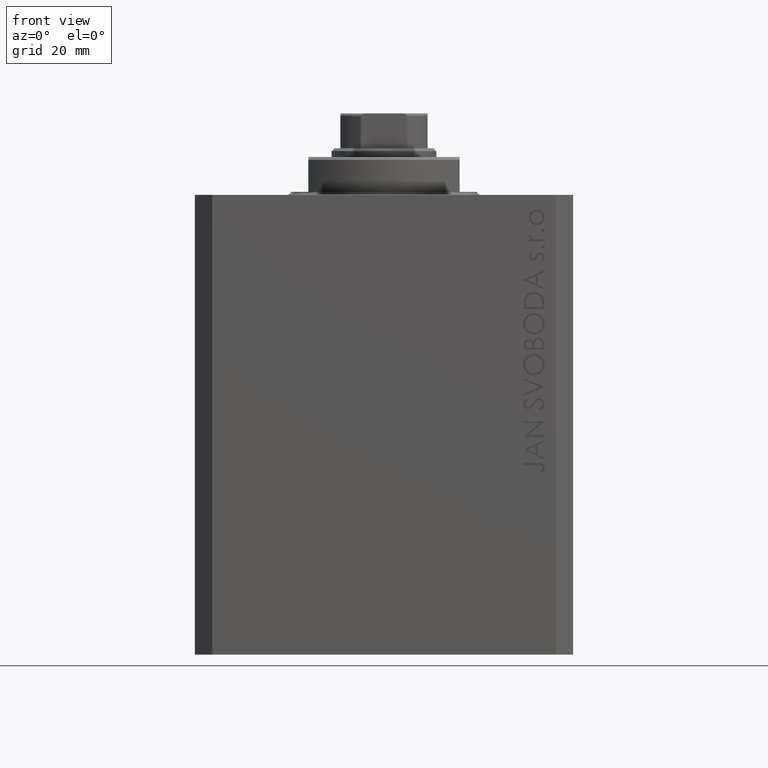
[diagram: clean part render]
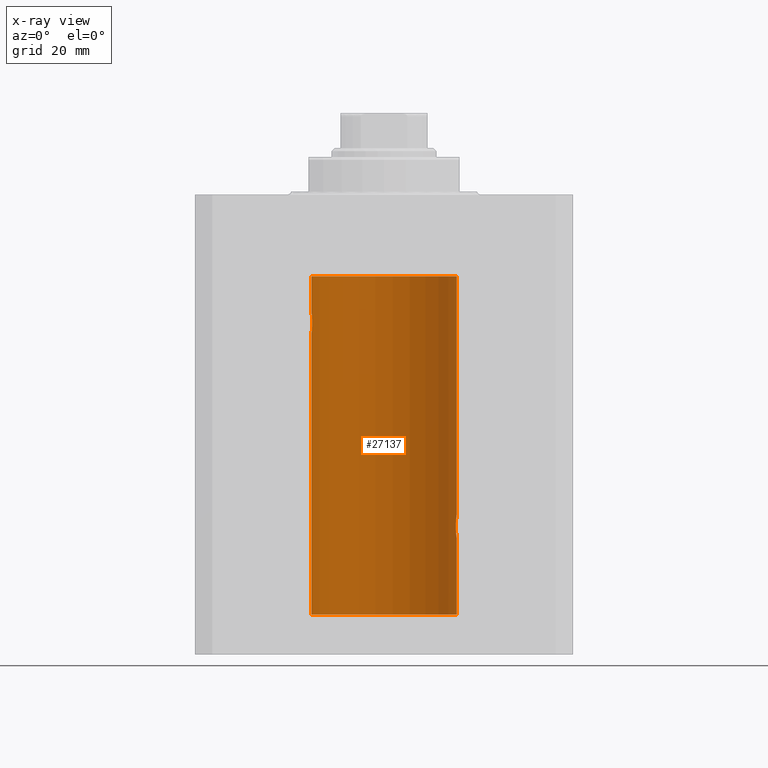
[diagram: x-ray — body ghosted, one internal face saturated and labeled with its STEP entity id]
A machine part, front view, then the same camera in x-ray: the body is ghosted and one INTERNAL B-rep face — a face not visible from any outside direction — is saturated and labeled: STEP entity #27137.
In plain terms, the highlighted cylindrical surface (partial cylindrical patch) has radius 12.5 mm, axis along (0, 0, 1).
Its self-contained STEP definition (entity closure, byte-faithful):
#103 = VECTOR ( 'NONE', #38731, 1000.000000000000000 ) ;
#238 = CARTESIAN_POINT ( 'NONE',  ( -12.46909283808506430, 0.8868029758979402155, -23.79742491916155345 ) ) ;
#696 = CARTESIAN_POINT ( 'NONE',  ( -12.44076681548080288, 1.220297236145718944, -23.58991408680628155 ) ) ;
#1567 = CARTESIAN_POINT ( 'NONE',  ( -12.50000000000000000, 1.867773856434666690E-17, -20.00000000000000000 ) ) ;
#1930 = CARTESIAN_POINT ( 'NONE',  ( 12.37021546997940113, 1.797317011867410219, -56.11295119741077997 ) ) ;
#1940 = ORIENTED_EDGE ( 'NONE', *, *, #11680, .T. ) ;
#2163 = CARTESIAN_POINT ( 'NONE',  ( 12.50000000000000178, 0.1324055009716459952, -59.00000000000000711 ) ) ;
#2618 = CYLINDRICAL_SURFACE ( 'NONE', #13047, 12.50000000000000000 ) ;
#2702 = ORIENTED_EDGE ( 'NONE', *, *, #4359, .T. ) ;
#3355 = CARTESIAN_POINT ( 'NONE',  ( -12.49788564268284041, 0.2633501011236127343, -23.98690384766255335 ) ) ;
#3588 = CARTESIAN_POINT ( 'NONE',  ( -12.44082361696003503, 1.219754986802281449, -20.40963319990594016 ) ) ;
#4358 = EDGE_CURVE ( 'NONE', #11318, #36697, #27882, .T. ) ;
#4359 = EDGE_CURVE ( 'NONE', #36697, #19746, #24497, .T. ) ;
#5171 = EDGE_CURVE ( 'NONE', #45705, #22380, #25640, .T. ) ;
#5354 = CIRCLE ( 'NONE', #10685, 12.50000000000000000 ) ;
#5474 = CARTESIAN_POINT ( 'NONE',  ( 12.50000000000000000, 0.000000000000000000, -13.99999999999999822 ) ) ;
#5496 = CARTESIAN_POINT ( 'NONE',  ( 12.37925647381943506, 1.734744884174225898, -55.99620732598649653 ) ) ;
#7063 = EDGE_CURVE ( 'NONE', #38696, #45705, #5354, .T. ) ;
#7136 = CIRCLE ( 'NONE', #33788, 12.50000000000000000 ) ;
#7162 = DIRECTION ( 'NONE',  ( 0.000000000000000000, 0.000000000000000000, 1.000000000000000000 ) ) ;
#7338 = CARTESIAN_POINT ( 'NONE',  ( -12.50000000000000000, 1.530808498934191521E-15, -72.09999999999999432 ) ) ;
#7549 = CARTESIAN_POINT ( 'NONE',  ( 12.50000000000000000, 0.000000000000000000, -72.09999999999999432 ) ) ;
#7626 = CARTESIAN_POINT ( 'NONE',  ( -12.37018026341338839, 1.797558627508998086, -22.88656313533016373 ) ) ;
#7866 = CARTESIAN_POINT ( 'NONE',  ( -12.50000000000000000, 0.1323736289504353625, -20.00000000000000000 ) ) ;
#8102 = CARTESIAN_POINT ( 'NONE',  ( -12.46009879577771606, 1.003863686549169465, -23.73470742397611843 ) ) ;
#8251 = LINE ( 'NONE', #7549, #18454 ) ;
#9090 = CARTESIAN_POINT ( 'NONE',  ( 12.44079900692650931, 1.220007525301745277, -58.59017579083664629 ) ) ;
#9288 = DIRECTION ( 'NONE',  ( 1.000000000000000000, 0.000000000000000000, 0.000000000000000000 ) ) ;
#9331 = CARTESIAN_POINT ( 'NONE',  ( 12.44079117518645461, 1.220047488436375227, -55.40989676335085079 ) ) ;
#9620 = VERTEX_POINT ( 'NONE', #18419 ) ;
#9631 = CARTESIAN_POINT ( 'NONE',  ( 12.50000000000000000, -3.070791583031755813E-15, -59.00000000000000711 ) ) ;
#9800 = CARTESIAN_POINT ( 'NONE',  ( 12.48983962833819028, 0.5199974825204922713, -55.06435160808016605 ) ) ;
#10200 = ORIENTED_EDGE ( 'NONE', *, *, #38671, .F. ) ;
#10685 = AXIS2_PLACEMENT_3D ( 'NONE', #25519, #7162, #25749 ) ;
#11317 = ORIENTED_EDGE ( 'NONE', *, *, #4358, .T. ) ;
#11318 = VERTEX_POINT ( 'NONE', #9631 ) ;
#11447 = CARTESIAN_POINT ( 'NONE',  ( -12.43019346654084956, 1.322451657002078340, -20.49398366327208620 ) ) ;
#11680 = EDGE_CURVE ( 'NONE', #41754, #22380, #27484, .T. ) ;
#12675 = CARTESIAN_POINT ( 'NONE',  ( 12.39867611624532806, 1.590019252152835794, -55.77984495929611342 ) ) ;
#12899 = CARTESIAN_POINT ( 'NONE',  ( 12.33896267925302581, 2.000000000000254463, -57.00000000000000000 ) ) ;
#13047 = AXIS2_PLACEMENT_3D ( 'NONE', #31239, #16927, #42696 ) ;
#13138 = CARTESIAN_POINT ( 'NONE',  ( 12.46019522898365395, 1.002712894177340885, -58.73540896027601832 ) ) ;
#13213 = DIRECTION ( 'NONE',  ( -0.000000000000000000, -0.000000000000000000, 1.000000000000000000 ) ) ;
#14327 = CARTESIAN_POINT ( 'NONE',  ( -12.48390768591463207, 0.6455696738844916016, -20.10252270298193977 ) ) ;
#14657 = CARTESIAN_POINT ( 'NONE',  ( -12.50000000000000000, 1.530808426276628993E-15, -23.99999999999999645 ) ) ;
#14706 = ORIENTED_EDGE ( 'NONE', *, *, #5171, .F. ) ;
#14784 = CARTESIAN_POINT ( 'NONE',  ( -12.50000000000000533, 0.1306394121199390135, -24.00000000000000711 ) ) ;
#15244 = CARTESIAN_POINT ( 'NONE',  ( -12.48394649977302073, 0.6448065707253024526, -23.89773031393659153 ) ) ;
#15649 = ORIENTED_EDGE ( 'NONE', *, *, #33218, .T. ) ;
#16051 = VERTEX_POINT ( 'NONE', #5474 ) ;
#16248 = CARTESIAN_POINT ( 'NONE',  ( 12.34779119491631150, 1.947363444907014518, -57.52502775168253635 ) ) ;
#16395 = CARTESIAN_POINT ( 'NONE',  ( 12.50000000000000000, 0.000000000000000000, -72.09999999999999432 ) ) ;
#16461 = FACE_OUTER_BOUND ( 'NONE', #22906, .T. ) ;
#16485 = CARTESIAN_POINT ( 'NONE',  ( 12.39869754437268767, 1.598954131913735033, -58.22932152813012863 ) ) ;
#16927 = DIRECTION ( 'NONE',  ( -0.000000000000000000, -0.000000000000000000, 1.000000000000000000 ) ) ;
#16946 = CARTESIAN_POINT ( 'NONE',  ( 12.34110728646152211, 1.986893050944461780, -56.73661347764981855 ) ) ;
#17190 = CARTESIAN_POINT ( 'NONE',  ( 12.43016561391612029, 1.322713721413891319, -58.50578877836697700 ) ) ;
#17827 = EDGE_CURVE ( 'NONE', #16051, #9620, #7136, .T. ) ;
#18136 = CARTESIAN_POINT ( 'NONE',  ( -12.34922241902463114, 1.935814255713574239, -22.51937350851555308 ) ) ;
#18365 = CARTESIAN_POINT ( 'NONE',  ( -12.33895470450623044, 2.000049200055401766, -22.12992629360264729 ) ) ;
#18419 = CARTESIAN_POINT ( 'NONE',  ( -12.50000000000000000, 1.530808498934191521E-15, -13.99999999999999822 ) ) ;
#18454 = VECTOR ( 'NONE', #26610, 1000.000000000000000 ) ;
#18601 = CARTESIAN_POINT ( 'NONE',  ( -12.33897869807161385, 1.999901172190678089, -21.73788193668374547 ) ) ;
#18836 = CARTESIAN_POINT ( 'NONE',  ( -12.50000000000000000, 1.867773856434666690E-17, -20.00000000000000000 ) ) ;
#19381 = VECTOR ( 'NONE', #45280, 1000.000000000000000 ) ;
#19507 = LINE ( 'NONE', #34287, #19381 ) ;
#19746 = VERTEX_POINT ( 'NONE', #35347 ) ;
#20053 = CARTESIAN_POINT ( 'NONE',  ( 12.46910683544638232, 0.8866026273585057016, -55.20247863689694157 ) ) ;
#20519 = CARTESIAN_POINT ( 'NONE',  ( 12.48395395845270528, 0.6446573166014708534, -55.10222124213517958 ) ) ;
#20758 = CARTESIAN_POINT ( 'NONE',  ( 12.48390005916862933, 0.6457215011736597843, -58.89742771554266199 ) ) ;
#21000 = CARTESIAN_POINT ( 'NONE',  ( 12.50000000000000000, -3.070791583031755813E-15, -59.00000000000000711 ) ) ;
#21400 = ORIENTED_EDGE ( 'NONE', *, *, #17827, .T. ) ;
#21714 = CARTESIAN_POINT ( 'NONE',  ( -12.49789934882883458, 0.2624928479599910047, -20.01301208516349917 ) ) ;
#21943 = CARTESIAN_POINT ( 'NONE',  ( -12.34109209020652465, 1.986986967296539897, -22.26269462454597914 ) ) ;
#22175 = CARTESIAN_POINT ( 'NONE',  ( -12.39864157855465088, 1.590288205413973532, -23.21980790594580313 ) ) ;
#22380 = VERTEX_POINT ( 'NONE', #14657 ) ;
#22906 = EDGE_LOOP ( 'NONE', ( #14706, #46343, #24759, #11317, #2702, #15649, #21400, #10200, #1940 ) ) ;
#23633 = CARTESIAN_POINT ( 'NONE',  ( 12.46011632531799407, 1.003644408234889429, -55.26516799687669135 ) ) ;
#24108 = CARTESIAN_POINT ( 'NONE',  ( 12.34924836377099844, 1.935649219704940194, -56.48002062127162759 ) ) ;
#24185 = CARTESIAN_POINT ( 'NONE',  ( 12.50000000000000000, 0.000000000000000000, -72.09999999999999432 ) ) ;
#24340 = CARTESIAN_POINT ( 'NONE',  ( 12.50000000000000000, -7.266276684081261841E-23, -55.00000000000000000 ) ) ;
#24497 = B_SPLINE_CURVE_WITH_KNOTS ( 'NONE', 3,
 ( #45371, #38181, #16946, #24108, #38658, #1930, #5496, #12675, #31030, #27223, #9331, #23633, #20053, #20519, #9800, #42005, #31502, #24340 ),
 .UNSPECIFIED., .F., .F.,
 ( 4, 2, 2, 2, 2, 2, 2, 2, 4 ),
 ( 0.003132244164174471934, 0.003523586189974247697, 0.003914928215774023459, 0.004306270241573798355, 0.004697612267373574985, 0.005088954293173349880, 0.005480296318973125642, 0.005871638344772901405, 0.006262980370572677168 ),
 .UNSPECIFIED. ) ;
#24759 = ORIENTED_EDGE ( 'NONE', *, *, #30299, .T. ) ;
#25282 = CARTESIAN_POINT ( 'NONE',  ( -12.46021263690096958, 1.002494658017156981, -20.26446744561863156 ) ) ;
#25519 = CARTESIAN_POINT ( 'NONE',  ( 0.000000000000000000, 0.000000000000000000, -72.09999999999999432 ) ) ;
#25525 = CARTESIAN_POINT ( 'NONE',  ( -12.37764291807175354, 1.747608771958140794, -20.99316879552500481 ) ) ;
#25640 = LINE ( 'NONE', #27057, #43447 ) ;
#25749 = DIRECTION ( 'NONE',  ( 1.000000000000000000, 0.000000000000000000, 0.000000000000000000 ) ) ;
#25756 = CARTESIAN_POINT ( 'NONE',  ( -12.39873273758732175, 1.598680238462371062, -20.77033506126851137 ) ) ;
#26610 = DIRECTION ( 'NONE',  ( -0.000000000000000000, -0.000000000000000000, 1.000000000000000000 ) ) ;
#27057 = CARTESIAN_POINT ( 'NONE',  ( -12.50000000000000000, 1.530808498934191521E-15, -72.09999999999999432 ) ) ;
#27137 = ADVANCED_FACE ( 'NONE', ( #16461 ), #2618, .F. ) ;
#27223 = CARTESIAN_POINT ( 'NONE',  ( 12.43037348241797879, 1.320834183883846435, -55.49243837704295856 ) ) ;
#27484 = B_SPLINE_CURVE_WITH_KNOTS ( 'NONE', 3,
 ( #18836, #7866, #21714, #44131, #14327, #43663, #25282, #3588, #11447, #25756, #25525, #43900, #18601, #18365, #21943, #18136, #40765, #7626, #39840, #22175, #33380, #32911, #696, #8102, #238, #15244, #29575, #3355, #14784, #32679 ),
 .UNSPECIFIED., .F., .F.,
 ( 4, 2, 2, 2, 2, 2, 2, 2, 2, 2, 2, 2, 2, 2, 4 ),
 ( 1.814683826656258666E-20, 0.0003914362731607577369, 0.0007828725463215154739, 0.001174308819482273265, 0.001565745092643030948, 0.002348617638964546530, 0.003131490185286061895, 0.003522926458446825216, 0.003914362731607588103, 0.004305799004768351423, 0.004697235277929114744, 0.005088671551089878065, 0.005480107824250641385, 0.005871544097411404706, 0.006262980370572168026 ),
 .UNSPECIFIED. ) ;
#27882 = B_SPLINE_CURVE_WITH_KNOTS ( 'NONE', 3,
 ( #21000, #2163, #35564, #30797, #20758, #35075, #13138, #9090, #17190, #16485, #42483, #16248, #42241, #12899 ),
 .UNSPECIFIED., .F., .F.,
 ( 4, 2, 2, 2, 2, 2, 4 ),
 ( 4.122900576430715099E-18, 0.0003915305205218091544, 0.0007830610410436140804, 0.001174591561565418952, 0.001566122082087223824, 0.002349183123130847879, 0.003132244164174471934 ),
 .UNSPECIFIED. ) ;
#29575 = CARTESIAN_POINT ( 'NONE',  ( -12.48983485452574982, 0.5201193324741355539, -23.93561774521849372 ) ) ;
#30299 = EDGE_CURVE ( 'NONE', #38696, #11318, #42560, .T. ) ;
#30797 = CARTESIAN_POINT ( 'NONE',  ( 12.48989642018887203, 0.5185418732824298438, -58.93601292187605623 ) ) ;
#31030 = CARTESIAN_POINT ( 'NONE',  ( 12.40916530024876963, 1.507117913375724649, -55.67865955049006033 ) ) ;
#31239 = CARTESIAN_POINT ( 'NONE',  ( 0.000000000000000000, 0.000000000000000000, -72.09999999999999432 ) ) ;
#31502 = CARTESIAN_POINT ( 'NONE',  ( 12.50000000000000000, 0.1306079576516677443, -54.99999999999997868 ) ) ;
#32679 = CARTESIAN_POINT ( 'NONE',  ( -12.50000000000000000, 1.530808426276628993E-15, -23.99999999999999645 ) ) ;
#32911 = CARTESIAN_POINT ( 'NONE',  ( -12.43034574091277911, 1.321095788880539024, -23.50733550364322255 ) ) ;
#33218 = EDGE_CURVE ( 'NONE', #19746, #16051, #8251, .T. ) ;
#33380 = CARTESIAN_POINT ( 'NONE',  ( -12.40913174964213184, 1.507394620545641439, -23.32102833500698225 ) ) ;
#33788 = AXIS2_PLACEMENT_3D ( 'NONE', #34802, #42197, #9288 ) ;
#34287 = CARTESIAN_POINT ( 'NONE',  ( -12.50000000000000000, 1.530808498934191521E-15, -72.09999999999999432 ) ) ;
#34802 = CARTESIAN_POINT ( 'NONE',  ( 0.000000000000000000, 0.000000000000000000, -13.99999999999999822 ) ) ;
#35075 = CARTESIAN_POINT ( 'NONE',  ( 12.46901623405144299, 0.8878913781257963267, -58.79689651717550447 ) ) ;
#35347 = CARTESIAN_POINT ( 'NONE',  ( 12.50000000000000000, -7.266276684081261841E-23, -55.00000000000000000 ) ) ;
#35564 = CARTESIAN_POINT ( 'NONE',  ( 12.49789833780794268, 0.2625555164371063399, -58.98698170822145670 ) ) ;
#36697 = VERTEX_POINT ( 'NONE', #46022 ) ;
#38181 = CARTESIAN_POINT ( 'NONE',  ( 12.33896267925302226, 2.000000000000254463, -56.86934705949917657 ) ) ;
#38658 = CARTESIAN_POINT ( 'NONE',  ( 12.35520276972935250, 1.897773362058245761, -56.35528278634337340 ) ) ;
#38671 = EDGE_CURVE ( 'NONE', #41754, #9620, #19507, .T. ) ;
#38696 = VERTEX_POINT ( 'NONE', #16395 ) ;
#38731 = DIRECTION ( 'NONE',  ( -0.000000000000000000, -0.000000000000000000, 1.000000000000000000 ) ) ;
#39840 = CARTESIAN_POINT ( 'NONE',  ( -12.37922086519035325, 1.734998657226764829, -23.00335814299181436 ) ) ;
#40765 = CARTESIAN_POINT ( 'NONE',  ( -12.35517291625592051, 1.897967064543089721, -22.64415233770293412 ) ) ;
#41754 = VERTEX_POINT ( 'NONE', #1567 ) ;
#42005 = CARTESIAN_POINT ( 'NONE',  ( 12.49788668346400122, 0.2632864803365719264, -55.01308975838331605 ) ) ;
#42197 = DIRECTION ( 'NONE',  ( 0.000000000000000000, 0.000000000000000000, 1.000000000000000000 ) ) ;
#42241 = CARTESIAN_POINT ( 'NONE',  ( 12.33896267925302581, 2.000000000000254907, -57.26143174220786136 ) ) ;
#42483 = CARTESIAN_POINT ( 'NONE',  ( 12.37760587642916477, 1.747868572747724114, -58.00639653169001519 ) ) ;
#42560 = LINE ( 'NONE', #24185, #103 ) ;
#42696 = DIRECTION ( 'NONE',  ( 1.000000000000000000, 0.000000000000000000, 0.000000000000000000 ) ) ;
#43447 = VECTOR ( 'NONE', #13213, 1000.000000000000000 ) ;
#43663 = CARTESIAN_POINT ( 'NONE',  ( -12.46903010196599304, 0.8876934327478135378, -20.20300788371381984 ) ) ;
#43900 = CARTESIAN_POINT ( 'NONE',  ( -12.34781876294798053, 1.947190906025043633, -21.47436412829509678 ) ) ;
#44131 = CARTESIAN_POINT ( 'NONE',  ( -12.48990118705761532, 0.5184196815546056047, -20.06395648222637007 ) ) ;
#45280 = DIRECTION ( 'NONE',  ( -0.000000000000000000, -0.000000000000000000, 1.000000000000000000 ) ) ;
#45371 = CARTESIAN_POINT ( 'NONE',  ( 12.33896267925302581, 2.000000000000254463, -57.00000000000000000 ) ) ;
#45705 = VERTEX_POINT ( 'NONE', #7338 ) ;
#46022 = CARTESIAN_POINT ( 'NONE',  ( 12.33896267925302581, 2.000000000000254463, -57.00000000000000000 ) ) ;
#46343 = ORIENTED_EDGE ( 'NONE', *, *, #7063, .F. ) ;